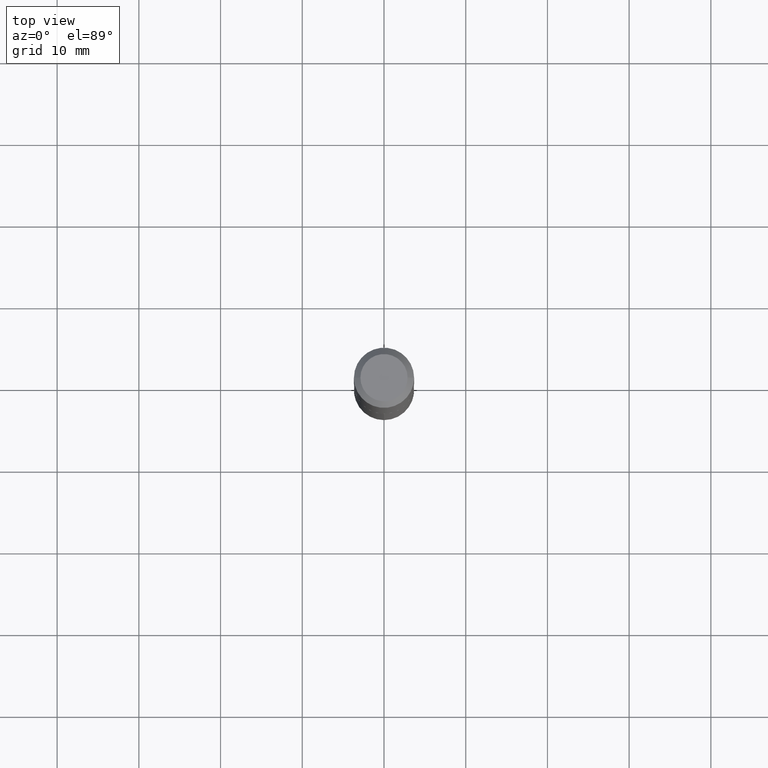
[diagram: clean part render]
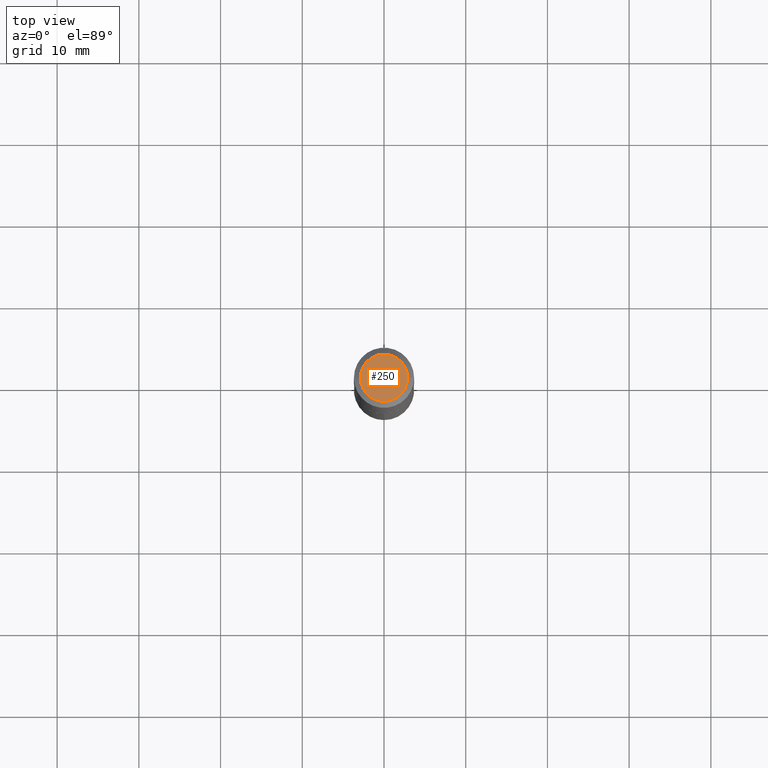
[diagram: same view with one face highlighted and labeled with its STEP entity id]
A machine part, top view. The second image highlights one B-rep face of the part: STEP entity #250.
In plain terms, the highlighted planar face has unit normal (0, -0, -1).
Its self-contained STEP definition (entity closure, byte-faithful):
#5 = CIRCLE ( 'NONE', #27, 0.1137499999999999761 ) ;
#17 = CIRCLE ( 'NONE', #361, 0.1137499999999999761 ) ;
#27 = AXIS2_PLACEMENT_3D ( 'NONE', #324, #51, #273 ) ;
#34 = VERTEX_POINT ( 'NONE', #44 ) ;
#44 = CARTESIAN_POINT ( 'NONE',  ( 0.1137499999999999761, -9.421313243811162805E-16, 5.388445916309068099E-19 ) ) ;
#51 = DIRECTION ( 'NONE',  ( -2.445468806185136597E-29, 3.491481338843145583E-15, 1.000000000000000000 ) ) ;
#84 = CARTESIAN_POINT ( 'NONE',  ( -1.317727640200104241E-47, 1.881365836194669315E-33, 5.388445916248356047E-19 ) ) ;
#89 = DIRECTION ( 'NONE',  ( -1.000000000000000000, 6.982962677686265922E-15, -4.876176775795935793E-29 ) ) ;
#118 = DIRECTION ( 'NONE',  ( 2.438088387897960049E-29, -3.491481338843145188E-15, -1.000000000000000000 ) ) ;
#126 = EDGE_CURVE ( 'NONE', #275, #34, #5, .T. ) ;
#167 = CARTESIAN_POINT ( 'NONE',  ( -0.1137499999999999761, 8.488664005062359884E-16, 5.388445916190900742E-19 ) ) ;
#218 = ORIENTED_EDGE ( 'NONE', *, *, #126, .T. ) ;
#231 = FACE_OUTER_BOUND ( 'NONE', #373, .T. ) ;
#243 = AXIS2_PLACEMENT_3D ( 'NONE', #383, #118, #89 ) ;
#244 = EDGE_CURVE ( 'NONE', #34, #275, #17, .T. ) ;
#250 = ADVANCED_FACE ( 'NONE', ( #231 ), #350, .F. ) ;
#263 = DIRECTION ( 'NONE',  ( 1.000000000000000000, -6.982962677686267499E-15, 4.876171487322469432E-29 ) ) ;
#273 = DIRECTION ( 'NONE',  ( 1.000000000000000000, -6.982962677686267499E-15, 4.876171487322469432E-29 ) ) ;
#275 = VERTEX_POINT ( 'NONE', #167 ) ;
#284 = DIRECTION ( 'NONE',  ( -2.445468806185136597E-29, 3.491481338843145583E-15, 1.000000000000000000 ) ) ;
#324 = CARTESIAN_POINT ( 'NONE',  ( -1.317727640200104241E-47, 1.881365836194669315E-33, 5.388445916248356047E-19 ) ) ;
#350 = PLANE ( 'NONE',  #243 ) ;
#361 = AXIS2_PLACEMENT_3D ( 'NONE', #84, #284, #263 ) ;
#373 = EDGE_LOOP ( 'NONE', ( #218, #374 ) ) ;
#374 = ORIENTED_EDGE ( 'NONE', *, *, #244, .T. ) ;
#383 = CARTESIAN_POINT ( 'NONE',  ( -6.588638201000521204E-48, 9.406829180973346575E-34, 2.694222958124178023E-19 ) ) ;